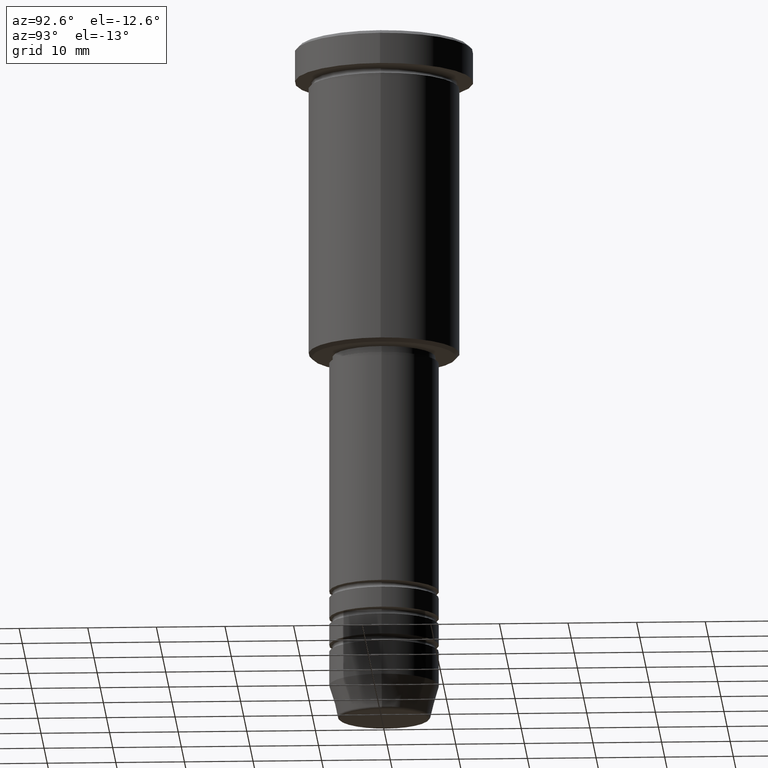
[diagram: clean part render]
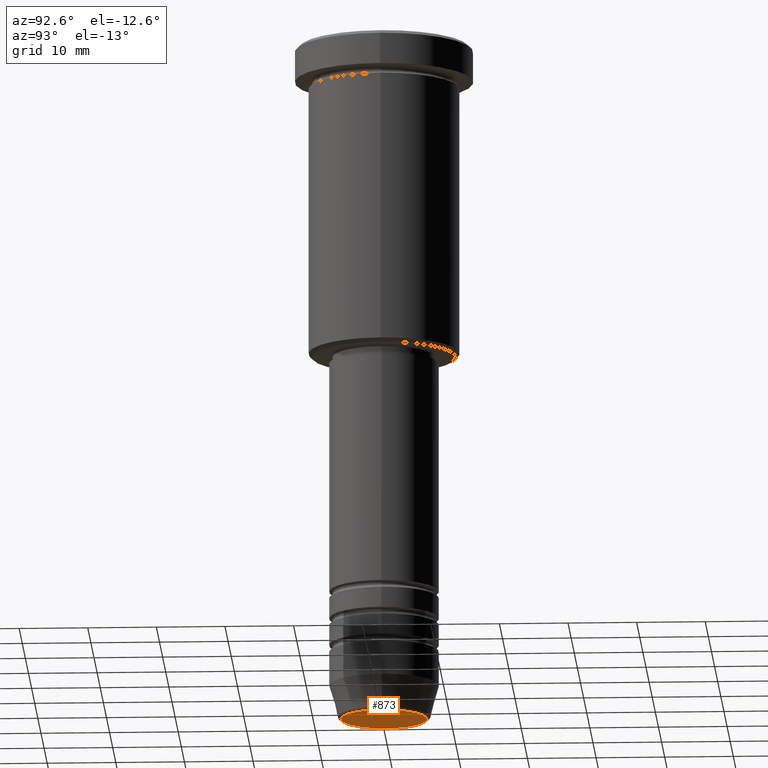
[diagram: same view with one face highlighted and labeled with its STEP entity id]
A machine part, auxiliary view. The second image highlights one B-rep face of the part: STEP entity #873.
In plain terms, the highlighted planar face has unit normal (0, -0, 1).
Its self-contained STEP definition (entity closure, byte-faithful):
#100 = CARTESIAN_POINT ( 'NONE',  ( 6.276590543854900339, 0.000000000000000000, -100.0000000000000000 ) ) ;
#167 = CARTESIAN_POINT ( 'NONE',  ( 0.000000000000000000, 0.000000000000000000, -100.0000000000000000 ) ) ;
#267 = DIRECTION ( 'NONE',  ( 0.000000000000000000, 0.000000000000000000, -1.000000000000000000 ) ) ;
#271 = CARTESIAN_POINT ( 'NONE',  ( 0.000000000000000000, 0.000000000000000000, -100.0000000000000000 ) ) ;
#337 = CIRCLE ( 'NONE', #941, 6.276590543854900339 ) ;
#388 = FACE_OUTER_BOUND ( 'NONE', #642, .T. ) ;
#442 = DIRECTION ( 'NONE',  ( 1.000000000000000000, 0.000000000000000000, 0.000000000000000000 ) ) ;
#446 = VERTEX_POINT ( 'NONE', #100 ) ;
#479 = ORIENTED_EDGE ( 'NONE', *, *, #565, .T. ) ;
#485 = PLANE ( 'NONE',  #836 ) ;
#565 = EDGE_CURVE ( 'NONE', #1050, #446, #337, .T. ) ;
#574 = DIRECTION ( 'NONE',  ( 1.000000000000000000, 0.000000000000000000, 0.000000000000000000 ) ) ;
#642 = EDGE_LOOP ( 'NONE', ( #664, #479 ) ) ;
#649 = CARTESIAN_POINT ( 'NONE',  ( -6.276590543854900339, 7.982336011935116411E-16, -100.0000000000000000 ) ) ;
#664 = ORIENTED_EDGE ( 'NONE', *, *, #694, .T. ) ;
#694 = EDGE_CURVE ( 'NONE', #446, #1050, #775, .T. ) ;
#761 = DIRECTION ( 'NONE',  ( 0.000000000000000000, -0.000000000000000000, 1.000000000000000000 ) ) ;
#775 = CIRCLE ( 'NONE', #1117, 6.276590543854900339 ) ;
#836 = AXIS2_PLACEMENT_3D ( 'NONE', #1112, #761, #574 ) ;
#873 = ADVANCED_FACE ( 'NONE', ( #388 ), #485, .F. ) ;
#941 = AXIS2_PLACEMENT_3D ( 'NONE', #167, #1162, #1071 ) ;
#1050 = VERTEX_POINT ( 'NONE', #649 ) ;
#1071 = DIRECTION ( 'NONE',  ( 1.000000000000000000, 0.000000000000000000, 0.000000000000000000 ) ) ;
#1112 = CARTESIAN_POINT ( 'NONE',  ( 0.000000000000000000, 0.000000000000000000, -100.0000000000000000 ) ) ;
#1117 = AXIS2_PLACEMENT_3D ( 'NONE', #271, #267, #442 ) ;
#1162 = DIRECTION ( 'NONE',  ( 0.000000000000000000, 0.000000000000000000, -1.000000000000000000 ) ) ;